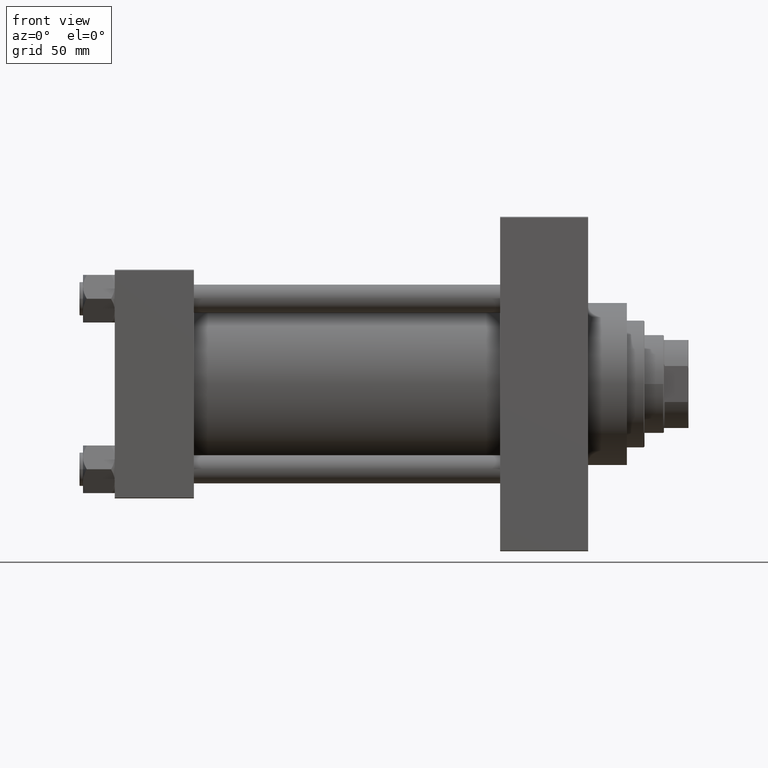
[diagram: clean part render]
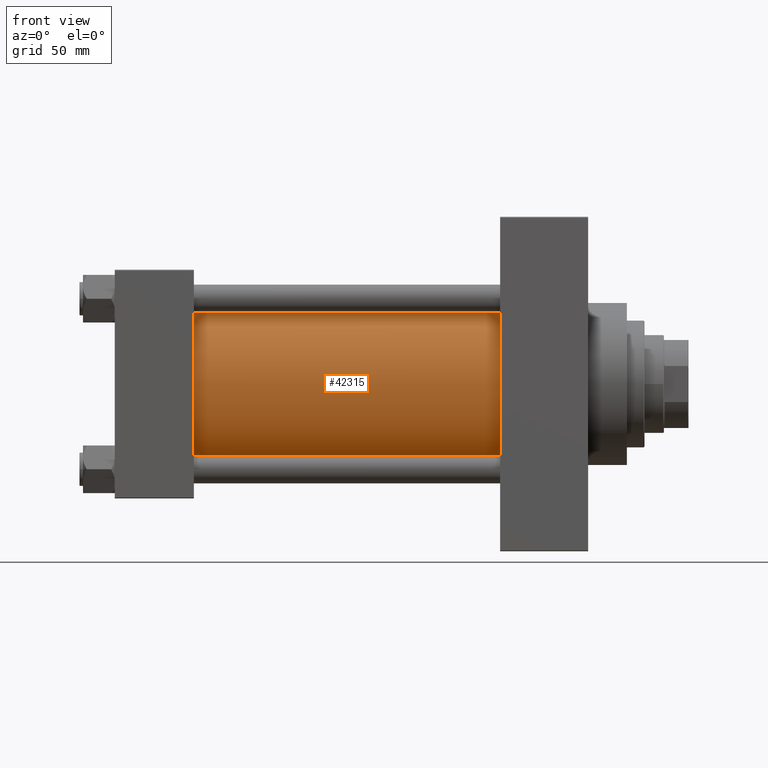
[diagram: same view with one face highlighted and labeled with its STEP entity id]
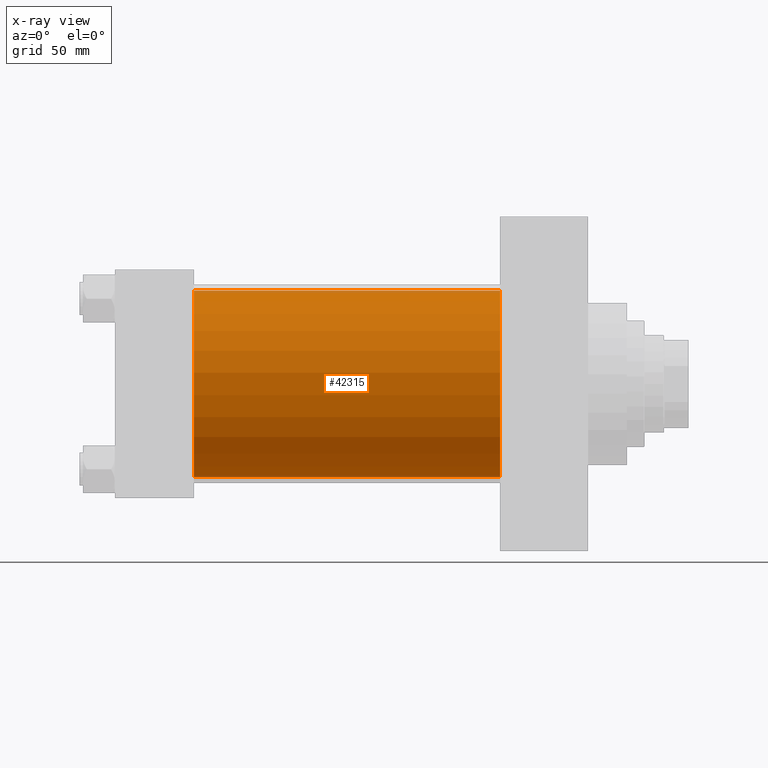
[diagram: x-ray of the same camera — body ghosted, the highlighted face saturated]
A machine part, front view. The second image highlights one B-rep face of the part: STEP entity #42315.
The next image is the same camera in x-ray: the body ghosted, the highlighted face saturated — about 2% of this face is hidden behind the body in this view.
In plain terms, the highlighted cylindrical surface (partial cylindrical patch) has radius 53 mm, axis along (-1, -0, -0).
Its self-contained STEP definition (entity closure, byte-faithful):
#7071 = EDGE_CURVE ( 'NONE', #47107, #10708, #46802, .T. ) ;
#7820 = AXIS2_PLACEMENT_3D ( 'NONE', #35348, #27879, #28585 ) ;
#8911 = AXIS2_PLACEMENT_3D ( 'NONE', #12081, #19549, #41541 ) ;
#10708 = VERTEX_POINT ( 'NONE', #13864 ) ;
#11436 = EDGE_LOOP ( 'NONE', ( #33065, #16929, #27515, #26109 ) ) ;
#11954 = VECTOR ( 'NONE', #27466, 1000.000000000000000 ) ;
#12081 = CARTESIAN_POINT ( 'NONE',  ( 218.9999999999999716, -2.602085213965210642E-15, 0.000000000000000000 ) ) ;
#13719 = CARTESIAN_POINT ( 'NONE',  ( 218.9999999999999716, 3.888542821515762466E-15, -53.00000000000000711 ) ) ;
#13864 = CARTESIAN_POINT ( 'NONE',  ( 44.99999999999998579, 3.888542821515762466E-15, -53.00000000000000711 ) ) ;
#14239 = CARTESIAN_POINT ( 'NONE',  ( 218.9999999999999716, -2.602085213965210642E-15, 53.00000000000000711 ) ) ;
#15302 = EDGE_CURVE ( 'NONE', #21977, #31385, #39388, .T. ) ;
#16929 = ORIENTED_EDGE ( 'NONE', *, *, #20709, .F. ) ;
#17074 = CARTESIAN_POINT ( 'NONE',  ( 44.99999999999998579, -2.602085213965210642E-15, 0.000000000000000000 ) ) ;
#19549 = DIRECTION ( 'NONE',  ( 1.000000000000000000, 0.000000000000000000, 0.000000000000000000 ) ) ;
#20709 = EDGE_CURVE ( 'NONE', #21977, #47107, #38969, .T. ) ;
#21977 = VERTEX_POINT ( 'NONE', #14239 ) ;
#23153 = AXIS2_PLACEMENT_3D ( 'NONE', #17074, #39279, #34919 ) ;
#23684 = CARTESIAN_POINT ( 'NONE',  ( 218.9999999999999716, -2.602085213965210642E-15, 53.00000000000000711 ) ) ;
#26109 = ORIENTED_EDGE ( 'NONE', *, *, #41093, .T. ) ;
#26476 = CARTESIAN_POINT ( 'NONE',  ( 218.9999999999999716, 3.888542821515762466E-15, -53.00000000000000711 ) ) ;
#27466 = DIRECTION ( 'NONE',  ( -1.000000000000000000, -0.000000000000000000, -0.000000000000000000 ) ) ;
#27515 = ORIENTED_EDGE ( 'NONE', *, *, #15302, .T. ) ;
#27879 = DIRECTION ( 'NONE',  ( -1.000000000000000000, -0.000000000000000000, -0.000000000000000000 ) ) ;
#28585 = DIRECTION ( 'NONE',  ( 0.000000000000000000, 0.000000000000000000, 1.000000000000000000 ) ) ;
#31385 = VERTEX_POINT ( 'NONE', #34855 ) ;
#31962 = CYLINDRICAL_SURFACE ( 'NONE', #7820, 53.00000000000000711 ) ;
#33065 = ORIENTED_EDGE ( 'NONE', *, *, #7071, .F. ) ;
#34855 = CARTESIAN_POINT ( 'NONE',  ( 44.99999999999998579, -2.602085213965210642E-15, 53.00000000000000711 ) ) ;
#34919 = DIRECTION ( 'NONE',  ( 0.000000000000000000, 0.000000000000000000, 1.000000000000000000 ) ) ;
#35348 = CARTESIAN_POINT ( 'NONE',  ( 218.9999999999999716, -2.602085213965210642E-15, 0.000000000000000000 ) ) ;
#35592 = FACE_OUTER_BOUND ( 'NONE', #11436, .T. ) ;
#36889 = VECTOR ( 'NONE', #38419, 1000.000000000000000 ) ;
#37147 = CIRCLE ( 'NONE', #23153, 53.00000000000000711 ) ;
#38419 = DIRECTION ( 'NONE',  ( -1.000000000000000000, -0.000000000000000000, -0.000000000000000000 ) ) ;
#38969 = CIRCLE ( 'NONE', #8911, 53.00000000000000711 ) ;
#39279 = DIRECTION ( 'NONE',  ( 1.000000000000000000, -0.000000000000000000, 0.000000000000000000 ) ) ;
#39388 = LINE ( 'NONE', #23684, #36889 ) ;
#41093 = EDGE_CURVE ( 'NONE', #31385, #10708, #37147, .T. ) ;
#41541 = DIRECTION ( 'NONE',  ( 0.000000000000000000, 0.000000000000000000, -1.000000000000000000 ) ) ;
#42315 = ADVANCED_FACE ( 'NONE', ( #35592 ), #31962, .T. ) ;
#46802 = LINE ( 'NONE', #13719, #11954 ) ;
#47107 = VERTEX_POINT ( 'NONE', #26476 ) ;